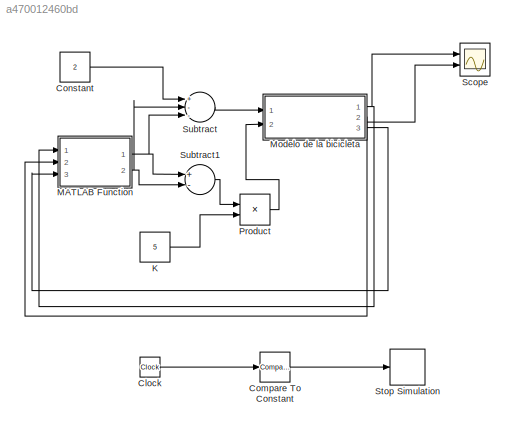
MODEL slx_a470012460bd
KIND model
CONFIG AbsTol = auto
CONFIG EnableMultiTasking = off
CONFIG FixedStep = auto
CONFIG MaxStep = auto
CONFIG MinStep = auto
CONFIG RelTol = 1e-3
CONFIG SampleTimeConstraint = Unconstrained
CONFIG Solver = VariableStepAuto
CONFIG SolverName = VariableStepAuto
CONFIG StartTime = 0.0
CONFIG StopTime = 10.0
BLOCK [Clock] Clock
  Decimation = 1000
BLOCK [Reference] Compare To Constant  REF=simulink/Logic and Bit
Operations/Compare
To Constant
  Ports = [1, 1]
  SourceBlock = simulink/Logic and Bit\nOperations/Compare\nTo Constant
  SourceType = Compare To Constant
BLOCK [Constant] Constant
  Value = 2
BLOCK [Constant] K 
  Value = 5
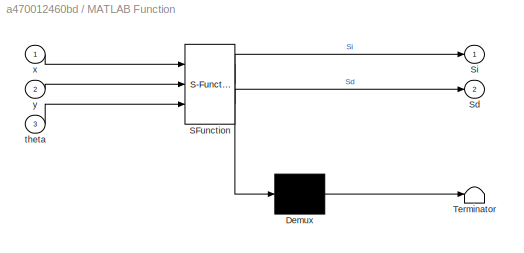
BLOCK [SubSystem] MATLAB Function
  ErrorFcn = Stateflow.Translate.translate
  PermitHierarchicalResolution = ExplicitOnly
  Ports = [3, 2]
  RequestExecContextInheritance = off
  SFBlockType = MATLAB Function
  TreatAsAtomicUnit = on
  Variant = off
BLOCK [Demux] MATLAB Function/ Demux 
  Outputs = 1
  Ports = [1, 1]
BLOCK [S-Function] MATLAB Function/ SFunction 
  EnableBusSupport = on
  FunctionName = sf_sfun
  PortCounts = [3 3]
  Ports = [3, 3]
  SFcnIsStateOwnerBlock = off
  SFunctionDeploymentMode = off
  Tag = Stateflow S-Function Algoritmo_del_bicho 2
BLOCK [Terminator] MATLAB Function/ Terminator 
BLOCK [Outport] MATLAB Function/Sd
  IconDisplay = Port number
  Port = 2
BLOCK [Outport] MATLAB Function/Si
  IconDisplay = Port number
BLOCK [Inport] MATLAB Function/theta
  IconDisplay = Port number
  Port = 3
BLOCK [Inport] MATLAB Function/x
  IconDisplay = Port number
BLOCK [Inport] MATLAB Function/y
  IconDisplay = Port number
  Port = 2
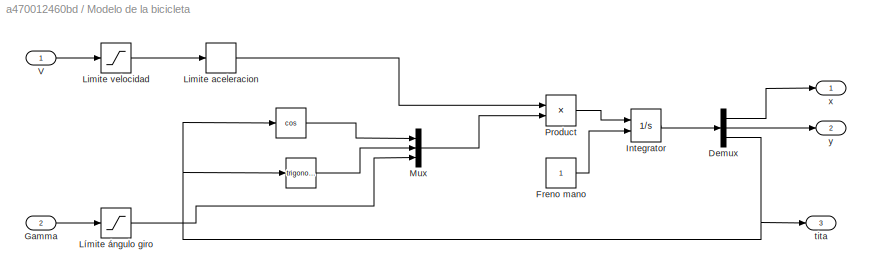
BLOCK [SubSystem] Modelo de la bicicleta 
  Ports = [2, 3]
  RequestExecContextInheritance = off
  Variant = off
BLOCK [Trigonometry] Modelo de la bicicleta / 
  Ports = [1, 1]
BLOCK [Demux] Modelo de la bicicleta /Demux
  DisplayOption = bar
  Outputs = 3
  Ports = [1, 3]
BLOCK [Constant] Modelo de la bicicleta /Freno mano
BLOCK [Inport] Modelo de la bicicleta /Gamma
  IconDisplay = Port number
  Port = 2
BLOCK [Integrator] Modelo de la bicicleta /Integrator
  InitialCondition = x0
  InitialConditionSource = external
  Ports = [2, 1]
BLOCK [RateLimiter] Modelo de la bicicleta /Limite aceleracion
  SampleTimeMode = inherited
BLOCK [Saturate] Modelo de la bicicleta /Limite velocidad
  InputPortMap = u0
  LowerLimit = -1
  Ports = [1, 1]
  UpperLimit = 1
BLOCK [Saturate] Modelo de la bicicleta /Límite ángulo giro 
  InputPortMap = u0
  LowerLimit = -2
  Ports = [1, 1]
  UpperLimit = 2
BLOCK [Mux] Modelo de la bicicleta /Mux
  DisplayOption = bar
  Inputs = 3
  Ports = [3, 1]
BLOCK [Product] Modelo de la bicicleta /Product
  InputSameDT = off
  OutDataTypeStr = Inherit: Inherit via internal rule
  Ports = [2, 1]
  RndMeth = Floor
  SaturateOnIntegerOverflow = off
BLOCK [Inport] Modelo de la bicicleta /V
  IconDisplay = Port number
BLOCK [Outport] Modelo de la bicicleta /tita
  IconDisplay = Port number
  Port = 3
BLOCK [Outport] Modelo de la bicicleta /x
  IconDisplay = Port number
BLOCK [Outport] Modelo de la bicicleta /y
  IconDisplay = Port number
  Port = 2
BLOCK [Product] Product
  InputSameDT = off
  OutDataTypeStr = Inherit: Inherit via internal rule
  Ports = [2, 1]
  RndMeth = Floor
  SaturateOnIntegerOverflow = off
BLOCK [Scope] Scope
  NumInputPorts = 2
  Ports = [2]
  ScopeSpecificationString = C++SS(StrPVP('SaveName','ScopeData'))
BLOCK [Stop] Stop Simulation
BLOCK [Sum] Subtract
  InputSameDT = off
  Inputs = +--
  OutDataTypeStr = Inherit: Inherit via internal rule
  Ports = [3, 1]
  SaturateOnIntegerOverflow = off
BLOCK [Sum] Subtract1
  InputSameDT = off
  Inputs = +-
  OutDataTypeStr = Inherit: Inherit via internal rule
  Ports = [2, 1]
  SaturateOnIntegerOverflow = off
LINE Clock:1 -> Compare To Constant:1
LINE Compare To Constant:1 -> Stop Simulation:1
LINE Constant:1 -> Subtract:1
LINE K :1 -> Product:2
NET MATLAB Function:1 -> Subtract1:1, Subtract:3
NET MATLAB Function:2 -> Subtract1:2, Subtract:2
NET Modelo de la bicicleta / :1 -> Modelo de la bicicleta /Mux:1, Modelo de la bicicleta /Mux:2
LINE Modelo de la bicicleta /Demux:1 -> Modelo de la bicicleta /x:1
LINE Modelo de la bicicleta /Demux:2 -> Modelo de la bicicleta /y:1
NET Modelo de la bicicleta /Demux:3 -> Modelo de la bicicleta / :1, Modelo de la bicicleta /tita:1
LINE Modelo de la bicicleta /Freno mano:1 -> Modelo de la bicicleta /Integrator:2
LINE Modelo de la bicicleta /Gamma:1 -> Modelo de la bicicleta /Límite ángulo giro :1
LINE Modelo de la bicicleta /Integrator:1 -> Modelo de la bicicleta /Demux:1
LINE Modelo de la bicicleta /Limite aceleracion:1 -> Modelo de la bicicleta /Product:1
LINE Modelo de la bicicleta /Limite velocidad:1 -> Modelo de la bicicleta /Limite aceleracion:1
LINE Modelo de la bicicleta /Límite ángulo giro :1 -> Modelo de la bicicleta /Mux:3
LINE Modelo de la bicicleta /Mux:1 -> Modelo de la bicicleta /Product:2
LINE Modelo de la bicicleta /Product:1 -> Modelo de la bicicleta /Integrator:1
LINE Modelo de la bicicleta /V:1 -> Modelo de la bicicleta /Limite velocidad:1
NET Modelo de la bicicleta :1 -> MATLAB Function:1, Scope:1
NET Modelo de la bicicleta :2 -> MATLAB Function:2, Scope:2
LINE Modelo de la bicicleta :3 -> MATLAB Function:3
LINE Product:1 -> Modelo de la bicicleta :2
LINE Subtract1:1 -> Product:1
LINE Subtract:1 -> Modelo de la bicicleta :1
note: NET lines group one-source signal fan-out (src -> all destinations, sorted); 1:1 wires keep LINE
CHART MATLAB Function states=1 transitions=1
  STATE_LABEL 'eML_blk_kernel()'
  STATE_LABEL 'SCRIPT:\nfunction [Si, Sd] = fcn(x, y, theta)\n    %% Matriz rotacióny traslación\n    Pi = [cos(theta) -sin(theta) 0; sin(theta) cos(theta) -2; 0 0 1];\n    Pd = [cos(theta) -sin(theta) 0; sin(theta) cos(theta) 2; 0 0 1];\n    %% Posición de la fuente de luz\n    x_fuente = 60; y_fuente = 90;\n    %% Calculando posición de los sensores\n    coord_i = [x y 1] * Pi;\n    coord_d = [x y 1] * Pd;\n    xi = coo...<+215ch>'
